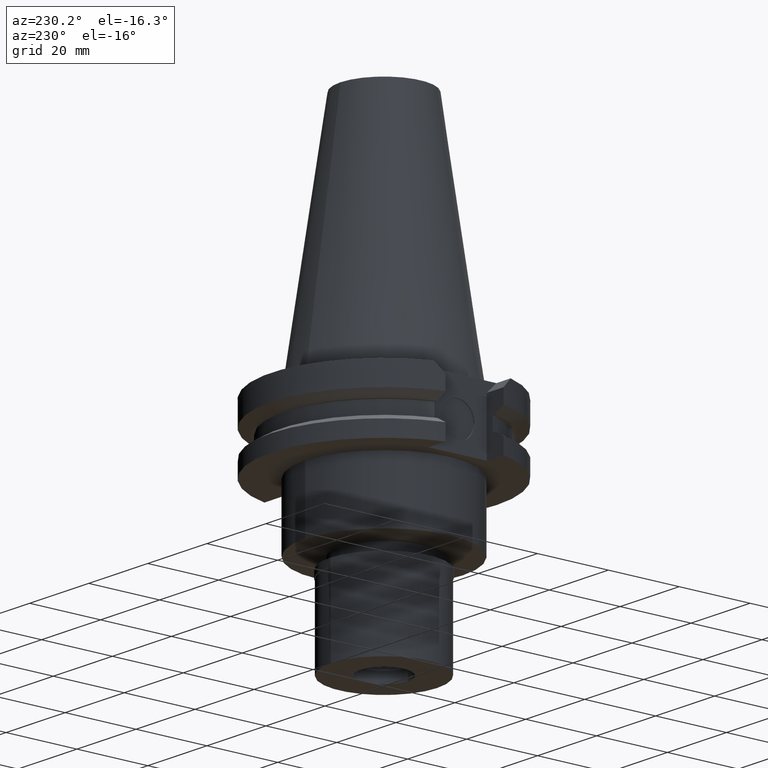
[diagram: clean part render]
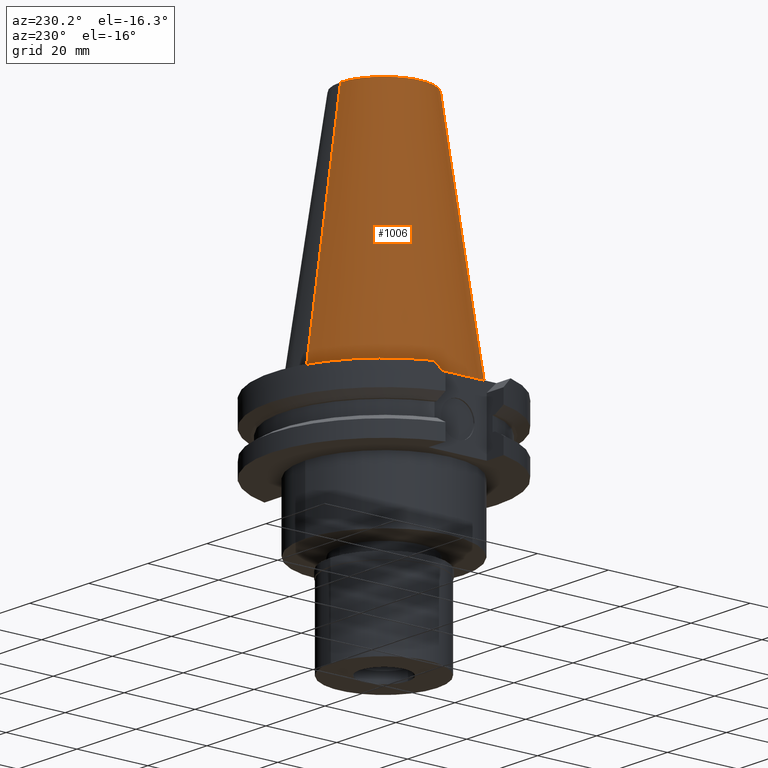
[diagram: same view with one face highlighted and labeled with its STEP entity id]
A machine part, auxiliary view. The second image highlights one B-rep face of the part: STEP entity #1006.
In plain terms, the highlighted conical surface has half-angle 8.297 deg.
Its self-contained STEP definition (entity closure, byte-faithful):
#37 = CARTESIAN_POINT ( 'NONE',  ( 0.0000000000000000000, 12.27186888070000137, 68.25000000000000000 ) ) ;
#112 = ORIENTED_EDGE ( 'NONE', *, *, #2554, .T. ) ;
#124 = EDGE_LOOP ( 'NONE', ( #1534, #1987, #1613, #112 ) ) ;
#169 = VERTEX_POINT ( 'NONE', #37 ) ;
#375 = EDGE_CURVE ( 'NONE', #2262, #1960, #923, .T. ) ;
#644 = DIRECTION ( 'NONE',  ( 0.0000000000000000000, -0.1443069799456937474, -0.9895329683941577192 ) ) ;
#662 = DIRECTION ( 'NONE',  ( 0.0000000000000000000, -1.000000000000000000, 0.0000000000000000000 ) ) ;
#778 = VECTOR ( 'NONE', #2616, 1000.000000000000114 ) ;
#780 = CARTESIAN_POINT ( 'NONE',  ( 0.0000000000000000000, -12.27186888070000137, 68.25000000000000000 ) ) ;
#849 = CONICAL_SURFACE ( 'NONE', #2589, 17.24843444035000317, 0.1448125860318199565 ) ;
#905 = DIRECTION ( 'NONE',  ( 0.0000000000000000000, -1.000000000000000000, 0.0000000000000000000 ) ) ;
#923 = LINE ( 'NONE', #2792, #1823 ) ;
#1006 = ADVANCED_FACE ( 'NONE', ( #1326 ), #849, .T. ) ;
#1136 = AXIS2_PLACEMENT_3D ( 'NONE', #1586, #3070, #662 ) ;
#1137 = CARTESIAN_POINT ( 'NONE',  ( 0.0000000000000000000, 0.0000000000000000000, 34.12500000000000000 ) ) ;
#1227 = LINE ( 'NONE', #1915, #778 ) ;
#1326 = FACE_OUTER_BOUND ( 'NONE', #124, .T. ) ;
#1534 = ORIENTED_EDGE ( 'NONE', *, *, #1786, .F. ) ;
#1555 = AXIS2_PLACEMENT_3D ( 'NONE', #2298, #1838, #2534 ) ;
#1586 = CARTESIAN_POINT ( 'NONE',  ( 0.0000000000000000000, 0.0000000000000000000, 68.25000000000000000 ) ) ;
#1613 = ORIENTED_EDGE ( 'NONE', *, *, #3018, .T. ) ;
#1621 = CARTESIAN_POINT ( 'NONE',  ( 0.0000000000000000000, -22.22500000000000142, -2.842170943040000381E-13 ) ) ;
#1786 = EDGE_CURVE ( 'NONE', #1960, #1964, #2647, .T. ) ;
#1823 = VECTOR ( 'NONE', #644, 1000.000000000000114 ) ;
#1838 = DIRECTION ( 'NONE',  ( 0.0000000000000000000, 0.0000000000000000000, -1.000000000000000000 ) ) ;
#1915 = CARTESIAN_POINT ( 'NONE',  ( 0.0000000000000000000, 12.27186888070000137, 68.25000000000000000 ) ) ;
#1960 = VERTEX_POINT ( 'NONE', #1621 ) ;
#1964 = VERTEX_POINT ( 'NONE', #2393 ) ;
#1987 = ORIENTED_EDGE ( 'NONE', *, *, #375, .F. ) ;
#2176 = CIRCLE ( 'NONE', #1136, 12.27186888070000137 ) ;
#2262 = VERTEX_POINT ( 'NONE', #780 ) ;
#2298 = CARTESIAN_POINT ( 'NONE',  ( 0.0000000000000000000, 0.0000000000000000000, -3.694822225953000089E-13 ) ) ;
#2393 = CARTESIAN_POINT ( 'NONE',  ( 0.0000000000000000000, 22.22500000000000142, -2.842170943040000381E-13 ) ) ;
#2534 = DIRECTION ( 'NONE',  ( 0.0000000000000000000, -1.000000000000000000, 0.0000000000000000000 ) ) ;
#2554 = EDGE_CURVE ( 'NONE', #169, #1964, #1227, .T. ) ;
#2589 = AXIS2_PLACEMENT_3D ( 'NONE', #1137, #3019, #905 ) ;
#2616 = DIRECTION ( 'NONE',  ( 0.0000000000000000000, 0.1443069799456937474, -0.9895329683941577192 ) ) ;
#2647 = CIRCLE ( 'NONE', #1555, 22.22500000000000142 ) ;
#2792 = CARTESIAN_POINT ( 'NONE',  ( 0.0000000000000000000, -12.27186888070000137, 68.25000000000000000 ) ) ;
#3018 = EDGE_CURVE ( 'NONE', #2262, #169, #2176, .T. ) ;
#3019 = DIRECTION ( 'NONE',  ( 0.0000000000000000000, 0.0000000000000000000, -1.000000000000000000 ) ) ;
#3070 = DIRECTION ( 'NONE',  ( 0.0000000000000000000, 0.0000000000000000000, -1.000000000000000000 ) ) ;